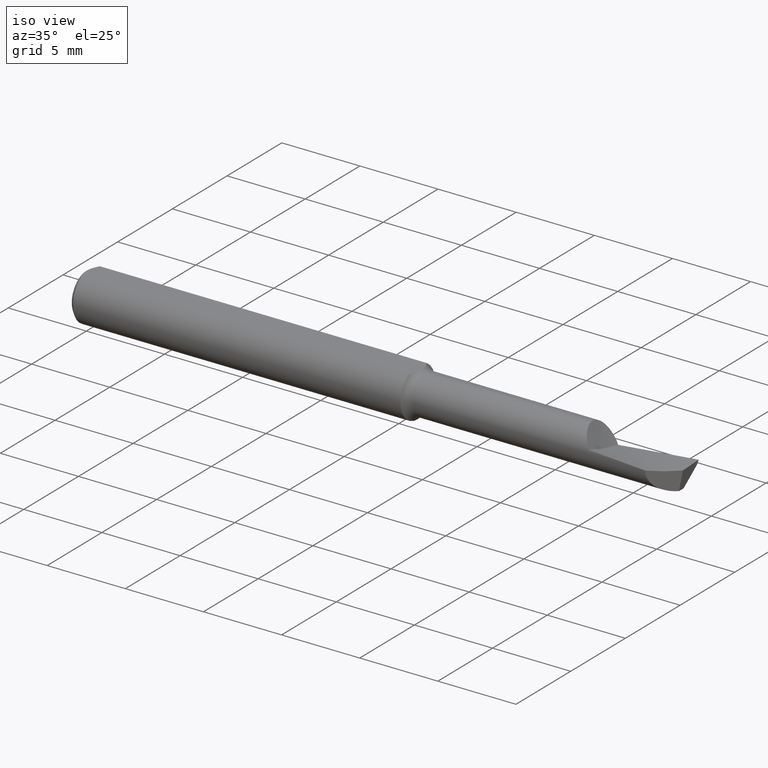
[diagram: clean part render]
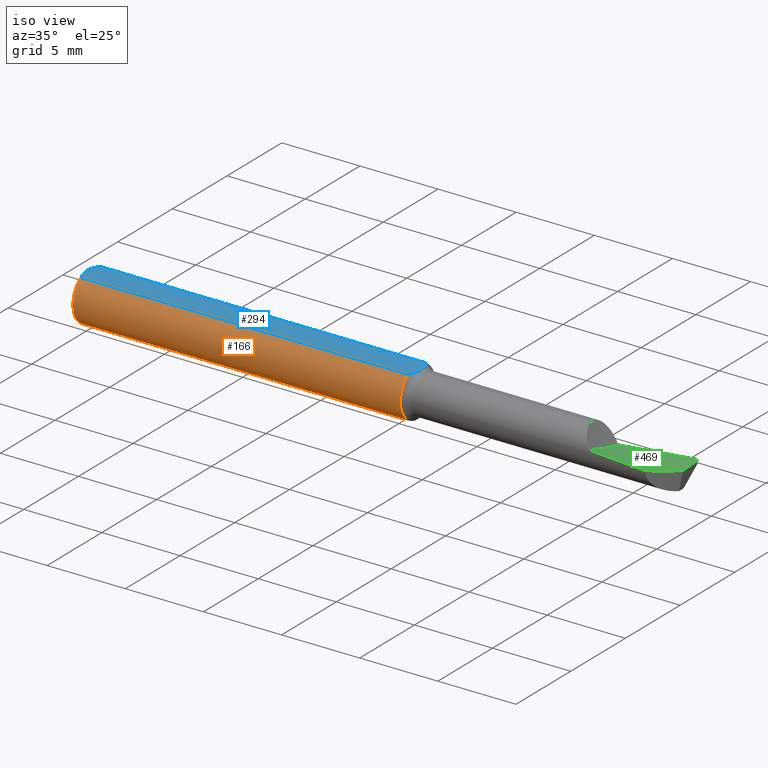
[diagram: same view with three faces highlighted in distinct colors, each labeled with its STEP entity id]
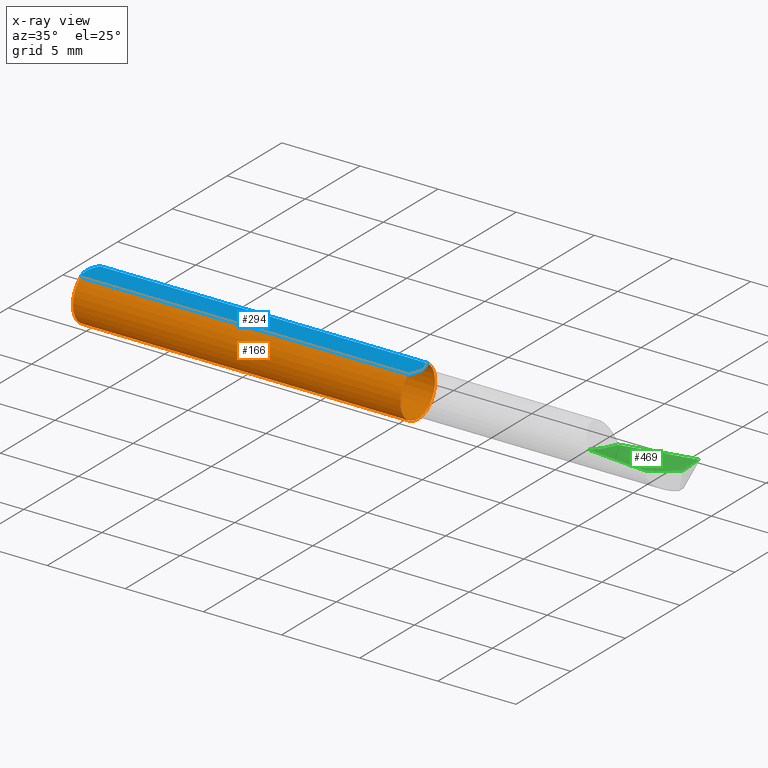
[diagram: x-ray of the same camera — body ghosted, the three highlighted faces saturated]
A machine part, iso view with three faces highlighted in distinct colors.
The next image is the same camera in x-ray (body ghosted, the three faces saturated) — at least one of them is partly hidden behind the body in this view.
Their STEP definitions:

[orange] entity #166 — the highlighted cylindrical surface (edge-blend (fillet) strip) has radius 1.5837 mm, axis along (-1, -0, -0).
#3 = DIRECTION ( 'NONE',  ( 0.000000000000000000, 0.000000000000000000, -1.000000000000000000 ) ) ;
#4 = CARTESIAN_POINT ( 'NONE',  ( 0.01000000000000000021, 0.03386738844375223462, 0.05234999999999997988 ) ) ;
#7 = DIRECTION ( 'NONE',  ( -1.000000000000000000, -0.000000000000000000, -0.000000000000000000 ) ) ;
#71 = EDGE_LOOP ( 'NONE', ( #762, #419, #255, #586, #273, #217 ) ) ;
#80 = CARTESIAN_POINT ( 'NONE',  ( 0.8350000000000000755, 7.635672792683742049E-18, -0.06234999999999995407 ) ) ;
#136 = DIRECTION ( 'NONE',  ( 0.000000000000000000, 0.000000000000000000, -1.000000000000000000 ) ) ;
#142 = VERTEX_POINT ( 'NONE', #413 ) ;
#144 = CIRCLE ( 'NONE', #418, 0.06235000000000000264 ) ;
#157 = AXIS2_PLACEMENT_3D ( 'NONE', #515, #387, #698 ) ;
#166 = ADVANCED_FACE ( 'NONE', ( #593 ), #283, .T. ) ;
#178 = CIRCLE ( 'NONE', #498, 0.06235000000000000264 ) ;
#187 = VERTEX_POINT ( 'NONE', #4 ) ;
#192 = CARTESIAN_POINT ( 'NONE',  ( 0.8350000000000000755, 0.03386738844375222768, 0.05234999999999997988 ) ) ;
#200 = CARTESIAN_POINT ( 'NONE',  ( 0.000000000000000000, 0.03386738844375223462, 0.05234999999999997988 ) ) ;
#217 = ORIENTED_EDGE ( 'NONE', *, *, #606, .F. ) ;
#237 = DIRECTION ( 'NONE',  ( 0.000000000000000000, 0.000000000000000000, 1.000000000000000000 ) ) ;
#255 = ORIENTED_EDGE ( 'NONE', *, *, #630, .F. ) ;
#256 = CARTESIAN_POINT ( 'NONE',  ( 0.000000000000000000, -0.03386738844375224156, 0.05234999999999997988 ) ) ;
#264 = VECTOR ( 'NONE', #556, 39.37007874015748143 ) ;
#273 = ORIENTED_EDGE ( 'NONE', *, *, #467, .F. ) ;
#283 = CYLINDRICAL_SURFACE ( 'NONE', #328, 0.06235000000000000264 ) ;
#296 = DIRECTION ( 'NONE',  ( -1.000000000000000000, -0.000000000000000000, -0.000000000000000000 ) ) ;
#300 = DIRECTION ( 'NONE',  ( 0.000000000000000000, 0.000000000000000000, 1.000000000000000000 ) ) ;
#305 = LINE ( 'NONE', #200, #264 ) ;
#328 = AXIS2_PLACEMENT_3D ( 'NONE', #667, #296, #237 ) ;
#330 = CIRCLE ( 'NONE', #732, 0.06235000000000000264 ) ;
#354 = VERTEX_POINT ( 'NONE', #754 ) ;
#372 = LINE ( 'NONE', #256, #763 ) ;
#378 = EDGE_CURVE ( 'NONE', #714, #187, #305, .T. ) ;
#387 = DIRECTION ( 'NONE',  ( -1.000000000000000000, -0.000000000000000000, -0.000000000000000000 ) ) ;
#413 = CARTESIAN_POINT ( 'NONE',  ( 0.01000000000000000021, 0.000000000000000000, -0.06235000000000000264 ) ) ;
#418 = AXIS2_PLACEMENT_3D ( 'NONE', #621, #7, #300 ) ;
#419 = ORIENTED_EDGE ( 'NONE', *, *, #661, .F. ) ;
#467 = EDGE_CURVE ( 'NONE', #142, #354, #611, .T. ) ;
#483 = CARTESIAN_POINT ( 'NONE',  ( 0.8350000000000000755, -0.03386738844375222074, 0.05234999999999998682 ) ) ;
#488 = CARTESIAN_POINT ( 'NONE',  ( 0.8350000000000000755, 0.000000000000000000, 0.000000000000000000 ) ) ;
#494 = DIRECTION ( 'NONE',  ( 1.000000000000000000, 0.000000000000000000, 0.000000000000000000 ) ) ;
#498 = AXIS2_PLACEMENT_3D ( 'NONE', #735, #545, #3 ) ;
#515 = CARTESIAN_POINT ( 'NONE',  ( 0.01000000000000000021, 0.000000000000000000, 0.000000000000000000 ) ) ;
#545 = DIRECTION ( 'NONE',  ( 1.000000000000000000, 0.000000000000000000, 0.000000000000000000 ) ) ;
#556 = DIRECTION ( 'NONE',  ( -1.000000000000000000, -0.000000000000000000, -0.000000000000000000 ) ) ;
#586 = ORIENTED_EDGE ( 'NONE', *, *, #751, .F. ) ;
#593 = FACE_OUTER_BOUND ( 'NONE', #71, .T. ) ;
#606 = EDGE_CURVE ( 'NONE', #187, #142, #144, .T. ) ;
#611 = CIRCLE ( 'NONE', #157, 0.06235000000000000264 ) ;
#621 = CARTESIAN_POINT ( 'NONE',  ( 0.01000000000000000021, 0.000000000000000000, 0.000000000000000000 ) ) ;
#630 = EDGE_CURVE ( 'NONE', #648, #673, #178, .T. ) ;
#648 = VERTEX_POINT ( 'NONE', #483 ) ;
#661 = EDGE_CURVE ( 'NONE', #673, #714, #330, .T. ) ;
#667 = CARTESIAN_POINT ( 'NONE',  ( 0.000000000000000000, 0.000000000000000000, 0.000000000000000000 ) ) ;
#673 = VERTEX_POINT ( 'NONE', #80 ) ;
#698 = DIRECTION ( 'NONE',  ( 0.000000000000000000, 0.000000000000000000, 1.000000000000000000 ) ) ;
#714 = VERTEX_POINT ( 'NONE', #192 ) ;
#732 = AXIS2_PLACEMENT_3D ( 'NONE', #488, #494, #136 ) ;
#735 = CARTESIAN_POINT ( 'NONE',  ( 0.8350000000000000755, 0.000000000000000000, 0.000000000000000000 ) ) ;
#747 = DIRECTION ( 'NONE',  ( 1.000000000000000000, 0.000000000000000000, 0.000000000000000000 ) ) ;
#751 = EDGE_CURVE ( 'NONE', #354, #648, #372, .T. ) ;
#754 = CARTESIAN_POINT ( 'NONE',  ( 0.01000000000000000021, -0.03386738844375224156, 0.05234999999999997988 ) ) ;
#762 = ORIENTED_EDGE ( 'NONE', *, *, #378, .F. ) ;
#763 = VECTOR ( 'NONE', #747, 39.37007874015748143 ) ;

[blue] entity #294 — the highlighted planar face has unit normal (0, -0, 1).
#4 = CARTESIAN_POINT ( 'NONE',  ( 0.01000000000000000021, 0.03386738844375223462, 0.05234999999999997988 ) ) ;
#12 = CARTESIAN_POINT ( 'NONE',  ( 0.8459813947744948548, 0.000000000000000000, 0.05234999999999997988 ) ) ;
#21 = VERTEX_POINT ( 'NONE', #33 ) ;
#33 = CARTESIAN_POINT ( 'NONE',  ( 0.000000000000000000, -5.426997665009263557E-18, 0.05234999999999997988 ) ) ;
#34 = CARTESIAN_POINT ( 'NONE',  ( 0.8436591603930051475, 0.01168548937459378163, 0.05234999999999997988 ) ) ;
#35 = B_SPLINE_CURVE_WITH_KNOTS ( 'NONE', 3,
 ( #319, #568, #274, #99, #521, #506 ),
 .UNSPECIFIED., .F., .F.,
 ( 4, 2, 4 ),
 ( 0.001820301466808375672, 0.002269751589838322255, 0.002719201712868268839 ),
 .UNSPECIFIED. ) ;
#38 = ORIENTED_EDGE ( 'NONE', *, *, #378, .T. ) ;
#57 = PLANE ( 'NONE',  #431 ) ;
#76 = CARTESIAN_POINT ( 'NONE',  ( 0.8368034958400585310, 0.02820766334555257354, 0.05234999999999997294 ) ) ;
#84 = ORIENTED_EDGE ( 'NONE', *, *, #783, .T. ) ;
#99 = CARTESIAN_POINT ( 'NONE',  ( 0.004679365186781223734, -0.02325953974079656220, 0.05234999999999998682 ) ) ;
#185 = CARTESIAN_POINT ( 'NONE',  ( 0.8368120315447669100, -0.02818087662329052390, 0.05234999999999998682 ) ) ;
#187 = VERTEX_POINT ( 'NONE', #4 ) ;
#192 = CARTESIAN_POINT ( 'NONE',  ( 0.8350000000000000755, 0.03386738844375222768, 0.05234999999999997988 ) ) ;
#200 = CARTESIAN_POINT ( 'NONE',  ( 0.000000000000000000, 0.03386738844375223462, 0.05234999999999997988 ) ) ;
#213 = CARTESIAN_POINT ( 'NONE',  ( 0.8453156692278123163, 0.005990347355133819086, 0.05234999999999997294 ) ) ;
#221 = CARTESIAN_POINT ( 'NONE',  ( 0.007185421074056372141, 0.02868573718286561436, 0.05234999999999997988 ) ) ;
#256 = CARTESIAN_POINT ( 'NONE',  ( 0.000000000000000000, -0.03386738844375224156, 0.05234999999999997988 ) ) ;
#264 = VECTOR ( 'NONE', #556, 39.37007874015748143 ) ;
#274 = CARTESIAN_POINT ( 'NONE',  ( 0.001055043921633255690, -0.01186408073210960291, 0.05234999999999997988 ) ) ;
#290 = EDGE_LOOP ( 'NONE', ( #692, #84, #756, #302, #536, #38 ) ) ;
#292 = DIRECTION ( 'NONE',  ( 0.000000000000000000, -1.036675771730518732E-16, 1.000000000000000000 ) ) ;
#294 = ADVANCED_FACE ( 'NONE', ( #663 ), #57, .T. ) ;
#302 = ORIENTED_EDGE ( 'NONE', *, *, #327, .F. ) ;
#305 = LINE ( 'NONE', #200, #264 ) ;
#319 = CARTESIAN_POINT ( 'NONE',  ( 0.000000000000000000, -5.426997665009263557E-18, 0.05234999999999997988 ) ) ;
#327 = EDGE_CURVE ( 'NONE', #664, #648, #509, .T. ) ;
#352 = CARTESIAN_POINT ( 'NONE',  ( -7.517250668112770884E-16, 0.005954997531773991229, 0.05234999999999998682 ) ) ;
#354 = VERTEX_POINT ( 'NONE', #754 ) ;
#372 = LINE ( 'NONE', #256, #763 ) ;
#378 = EDGE_CURVE ( 'NONE', #714, #187, #305, .T. ) ;
#381 = CARTESIAN_POINT ( 'NONE',  ( 0.8459813947744764251, -0.006046836617477542065, 0.05234999999999997988 ) ) ;
#385 = CARTESIAN_POINT ( 'NONE',  ( 0.8459813947744948548, 0.000000000000000000, 0.05234999999999997988 ) ) ;
#416 = CARTESIAN_POINT ( 'NONE',  ( 0.001063697276021675735, 0.01189177144351694949, 0.05234999999999998682 ) ) ;
#431 = AXIS2_PLACEMENT_3D ( 'NONE', #601, #292, #481 ) ;
#433 = CARTESIAN_POINT ( 'NONE',  ( 0.8350000000000000755, 0.03386738844375222768, 0.05234999999999997988 ) ) ;
#460 = B_SPLINE_CURVE_WITH_KNOTS ( 'NONE', 3,
 ( #592, #221, #660, #416, #352, #466 ),
 .UNSPECIFIED., .F., .F.,
 ( 4, 2, 4 ),
 ( 0.0009229516234080532410, 0.001371626545108214565, 0.001820301466808375672 ),
 .UNSPECIFIED. ) ;
#466 = CARTESIAN_POINT ( 'NONE',  ( 0.000000000000000000, -5.426997665009263557E-18, 0.05234999999999997988 ) ) ;
#477 = B_SPLINE_CURVE_WITH_KNOTS ( 'NONE', 3,
 ( #433, #76, #680, #559, #34, #644, #213, #578, #696, #711, #631, #385 ),
 .UNSPECIFIED., .F., .F.,
 ( 4, 2, 2, 2, 2, 4 ),
 ( 0.009001746539093115340, 0.009426138464416946444, 0.009638334427078861996, 0.009744432408409820640, 0.009797481399075299094, 0.009850530389740777548 ),
 .UNSPECIFIED. ) ;
#481 = DIRECTION ( 'NONE',  ( 0.000000000000000000, -1.000000000000000000, -1.036675771730518732E-16 ) ) ;
#483 = CARTESIAN_POINT ( 'NONE',  ( 0.8350000000000000755, -0.03386738844375222074, 0.05234999999999998682 ) ) ;
#496 = CARTESIAN_POINT ( 'NONE',  ( 0.8437167490825662197, -0.01161589549109410570, 0.05234999999999997988 ) ) ;
#501 = CARTESIAN_POINT ( 'NONE',  ( 0.8391788934236982245, -0.02268120224290464532, 0.05234999999999998682 ) ) ;
#506 = CARTESIAN_POINT ( 'NONE',  ( 0.01000000000000000021, -0.03386738844375224156, 0.05234999999999997988 ) ) ;
#509 = B_SPLINE_CURVE_WITH_KNOTS ( 'NONE', 3,
 ( #12, #381, #496, #501, #185, #619 ),
 .UNSPECIFIED., .F., .F.,
 ( 4, 2, 4 ),
 ( 9.965731331657841268E-17, 0.0004503630282564606590, 0.0009007260565128216798 ),
 .UNSPECIFIED. ) ;
#521 = CARTESIAN_POINT ( 'NONE',  ( 0.007163450771350561574, -0.02864528976618616399, 0.05234999999999998682 ) ) ;
#530 = EDGE_CURVE ( 'NONE', #187, #21, #460, .T. ) ;
#536 = ORIENTED_EDGE ( 'NONE', *, *, #760, .F. ) ;
#556 = DIRECTION ( 'NONE',  ( -1.000000000000000000, -0.000000000000000000, -0.000000000000000000 ) ) ;
#559 = CARTESIAN_POINT ( 'NONE',  ( 0.8425548128889882582, 0.01445079804372324805, 0.05234999999999998682 ) ) ;
#568 = CARTESIAN_POINT ( 'NONE',  ( -7.326168038673117461E-16, -0.005965286321680246008, 0.05234999999999997988 ) ) ;
#578 = CARTESIAN_POINT ( 'NONE',  ( 0.8457033153463193731, 0.003785084113135211027, 0.05234999999999997988 ) ) ;
#592 = CARTESIAN_POINT ( 'NONE',  ( 0.01000000000000000021, 0.03386738844375223462, 0.05234999999999997988 ) ) ;
#601 = CARTESIAN_POINT ( 'NONE',  ( 1.500787401574803281, 0.08234999999999999265, 0.05234999999999998682 ) ) ;
#614 = CARTESIAN_POINT ( 'NONE',  ( 0.8459813947744948548, 0.000000000000000000, 0.05234999999999997988 ) ) ;
#619 = CARTESIAN_POINT ( 'NONE',  ( 0.8350000000000000755, -0.03386738844375222074, 0.05234999999999998682 ) ) ;
#631 = CARTESIAN_POINT ( 'NONE',  ( 0.8459813947744762030, 0.0007122666807667983211, 0.05234999999999997988 ) ) ;
#644 = CARTESIAN_POINT ( 'NONE',  ( 0.8449495558818840291, 0.007428438660920773720, 0.05234999999999998682 ) ) ;
#648 = VERTEX_POINT ( 'NONE', #483 ) ;
#660 = CARTESIAN_POINT ( 'NONE',  ( 0.004671770759546989976, 0.02323517832780104542, 0.05234999999999997988 ) ) ;
#663 = FACE_OUTER_BOUND ( 'NONE', #290, .T. ) ;
#664 = VERTEX_POINT ( 'NONE', #614 ) ;
#680 = CARTESIAN_POINT ( 'NONE',  ( 0.8391606167690842666, 0.02272254421447777312, 0.05234999999999996600 ) ) ;
#692 = ORIENTED_EDGE ( 'NONE', *, *, #530, .T. ) ;
#696 = CARTESIAN_POINT ( 'NONE',  ( 0.8458054385995351643, 0.003041924228976440776, 0.05234999999999997988 ) ) ;
#711 = CARTESIAN_POINT ( 'NONE',  ( 0.8459445205630456988, 0.001536188589401673047, 0.05234999999999998682 ) ) ;
#714 = VERTEX_POINT ( 'NONE', #192 ) ;
#747 = DIRECTION ( 'NONE',  ( 1.000000000000000000, 0.000000000000000000, 0.000000000000000000 ) ) ;
#751 = EDGE_CURVE ( 'NONE', #354, #648, #372, .T. ) ;
#754 = CARTESIAN_POINT ( 'NONE',  ( 0.01000000000000000021, -0.03386738844375224156, 0.05234999999999997988 ) ) ;
#756 = ORIENTED_EDGE ( 'NONE', *, *, #751, .T. ) ;
#760 = EDGE_CURVE ( 'NONE', #714, #664, #477, .T. ) ;
#763 = VECTOR ( 'NONE', #747, 39.37007874015748143 ) ;
#783 = EDGE_CURVE ( 'NONE', #21, #354, #35, .T. ) ;

[green] entity #469 — the highlighted face is a freeform B-spline surface patch.
#19 = CARTESIAN_POINT ( 'NONE',  ( 1.371696910058134877, -0.04974385689216415107, 0.006738323171264287530 ) ) ;
#23 = CARTESIAN_POINT ( 'NONE',  ( 1.359259259259259389, -0.1107540548774973571, 0.02886139084095134047 ) ) ;
#26 = EDGE_CURVE ( 'NONE', #647, #570, #116, .T. ) ;
#27 = CARTESIAN_POINT ( 'NONE',  ( 1.359259259259259389, -0.03952263301441668458, -0.001352896635218390391 ) ) ;
#32 = CARTESIAN_POINT ( 'NONE',  ( 1.500000000000000222, 0.1123499999999999360, 0.009051054558355491400 ) ) ;
#41 = CARTESIAN_POINT ( 'NONE',  ( 1.077777777777778834, 0.1033942727226855457, -0.04908222612340253782 ) ) ;
#85 =( BOUNDED_SURFACE ( )  B_SPLINE_SURFACE ( 3, 2, ( 
 ( #91, #23, #389, #275, #770 ),
 ( #632, #27, #165, #214, #403 ),
 ( #260, #263, #464, #340, #512 ),
 ( #32, #766, #703, #41, #646 ) ),
 .UNSPECIFIED., .F., .F., .F. ) 
 B_SPLINE_SURFACE_WITH_KNOTS ( ( 4, 4 ),
 ( 3, 2, 3 ),
 ( 0.000000000000000000, 1.000000000000000000 ),
 ( 0.000000000000000000, 0.5000000000000000000, 1.000000000000000000 ),
 .UNSPECIFIED. ) 
 GEOMETRIC_REPRESENTATION_ITEM ( )  RATIONAL_B_SPLINE_SURFACE ( (
 ( 1.000000000000000000, 0.9848077530122080203, 1.000000000000000000, 0.9848077530122080203, 1.000000000000000000),
 ( 0.9829519941216796619, 0.9680187446498405013, 0.9829519941216796619, 0.9680187446498405013, 0.9829519941216796619),
 ( 0.9829519941216796619, 0.9680187446498405013, 0.9829519941216796619, 0.9680187446498405013, 0.9829519941216796619),
 ( 1.000000000000000000, 0.9848077530122080203, 1.000000000000000000, 0.9848077530122080203, 1.000000000000000000) ) ) 
 REPRESENTATION_ITEM ( '' )  SURFACE ( )  );
#91 = CARTESIAN_POINT ( 'NONE',  ( 1.500000000000000222, -0.1123499999999997279, 0.009051054558355354357 ) ) ;
#115 = CARTESIAN_POINT ( 'NONE',  ( 1.500000000000000222, 0.06099999999999999173, 0.000000000000000000 ) ) ;
#116 = B_SPLINE_CURVE_WITH_KNOTS ( 'NONE', 3,
 ( #390, #455, #326, #580 ),
 .UNSPECIFIED., .F., .F.,
 ( 4, 4 ),
 ( 0.000000000000000000, 1.000000000000000000 ),
 .UNSPECIFIED. ) ;
#117 = CARTESIAN_POINT ( 'NONE',  ( 1.299660611757699202, -0.04875608591997589170, 0.01108350512085068407 ) ) ;
#123 = CARTESIAN_POINT ( 'NONE',  ( 1.443537192659749113, -0.04994767138989437971, 0.002286946157460104621 ) ) ;
#131 = CARTESIAN_POINT ( 'NONE',  ( 1.499060726972478941, 0.005575862922834545765, -0.003710373355272122801 ) ) ;
#138 = VERTEX_POINT ( 'NONE', #123 ) ;
#155 = CARTESIAN_POINT ( 'NONE',  ( 1.310000000000000053, 0.04832009609053197763, -0.01285178251456811117 ) ) ;
#165 = CARTESIAN_POINT ( 'NONE',  ( 1.218518518518519222, -0.03856223875658788824, 0.005446666494089702493 ) ) ;
#176 = CARTESIAN_POINT ( 'NONE',  ( 1.310000000000000053, 0.04832009609053197763, -0.01285178251456811117 ) ) ;
#180 = EDGE_CURVE ( 'NONE', #602, #359, #652, .T. ) ;
#214 = CARTESIAN_POINT ( 'NONE',  ( 1.077777777777779056, -0.03760184449875909884, 0.01224622962339779429 ) ) ;
#243 = ORIENTED_EDGE ( 'NONE', *, *, #634, .F. ) ;
#244 = EDGE_CURVE ( 'NONE', #321, #359, #769, .T. ) ;
#260 = CARTESIAN_POINT ( 'NONE',  ( 1.500000000000000000, 0.03809952085550591394, -0.008070870114108811763 ) ) ;
#263 = CARTESIAN_POINT ( 'NONE',  ( 1.359259259259259389, 0.03667640869659492125, -0.01478884359299935912 ) ) ;
#275 = CARTESIAN_POINT ( 'NONE',  ( 1.077777777777778834, -0.09420359105850152626, 0.06500095372196058874 ) ) ;
#282 = CARTESIAN_POINT ( 'NONE',  ( 1.443537192659749113, -0.04994767138989437971, 0.002286946157460104621 ) ) ;
#293 = ORIENTED_EDGE ( 'NONE', *, *, #26, .T. ) ;
#295 = CARTESIAN_POINT ( 'NONE',  ( 1.306287550036676626, 0.04826060256744394567, -0.01307341729721895295 ) ) ;
#308 = CARTESIAN_POINT ( 'NONE',  ( 1.443537192659749113, -0.04994767138989437971, 0.002286946157460104621 ) ) ;
#313 = CARTESIAN_POINT ( 'NONE',  ( 1.499244874835158781, 0.02406214188587658606, -0.003524521965467473841 ) ) ;
#320 = CARTESIAN_POINT ( 'NONE',  ( 1.500000000000000222, 0.06099999999999999173, 0.000000000000000000 ) ) ;
#321 = VERTEX_POINT ( 'NONE', #320 ) ;
#326 = CARTESIAN_POINT ( 'NONE',  ( 1.301901999064766668, -0.01746344439931329581, -0.0004220525407220269585 ) ) ;
#336 = CARTESIAN_POINT ( 'NONE',  ( 1.499060726972478941, 0.005575862922834545765, -0.003710373355272122801 ) ) ;
#340 = CARTESIAN_POINT ( 'NONE',  ( 1.077777777777779056, 0.02940646820381983412, -0.02644103775337865517 ) ) ;
#350 =( BOUNDED_CURVE ( )  B_SPLINE_CURVE ( 2, ( #308, #19, #607 ),
 .UNSPECIFIED., .F., .T. ) 
 B_SPLINE_CURVE_WITH_KNOTS ( ( 3, 3 ),
 ( 0.1010291644753896767, 0.3552042555019970793 ),
 .UNSPECIFIED. ) 
 CURVE ( )  GEOMETRIC_REPRESENTATION_ITEM ( )  RATIONAL_B_SPLINE_CURVE ( ( 0.9848445176714386573, 0.9802899546835003308, 0.9835064192122493498 ) ) 
 REPRESENTATION_ITEM ( '' )  );
#356 = CARTESIAN_POINT ( 'NONE',  ( 1.499060726972478941, 0.005575862922834545765, -0.003710373355272122801 ) ) ;
#357 = CARTESIAN_POINT ( 'NONE',  ( 1.373365688489596392, 0.05312941210585368779, -0.009567210660196081434 ) ) ;
#359 = VERTEX_POINT ( 'NONE', #370 ) ;
#370 = CARTESIAN_POINT ( 'NONE',  ( 1.309999999999999387, 0.04851636515732773991, -0.01287844342414591614 ) ) ;
#389 = CARTESIAN_POINT ( 'NONE',  ( 1.218518518518519222, -0.1024788229679994139, 0.04693117228145596981 ) ) ;
#390 = CARTESIAN_POINT ( 'NONE',  ( 1.306287550036676626, 0.04826060256744394567, -0.01307341729721895295 ) ) ;
#403 = CARTESIAN_POINT ( 'NONE',  ( 0.9370370370370384450, -0.03437378154559433269, 0.01830725473886479424 ) ) ;
#430 = ORIENTED_EDGE ( 'NONE', *, *, #555, .F. ) ;
#432 = EDGE_CURVE ( 'NONE', #647, #602, #623, .T. ) ;
#443 = VERTEX_POINT ( 'NONE', #336 ) ;
#452 = CARTESIAN_POINT ( 'NONE',  ( 1.308143505835337672, 0.04829060363433861774, -0.01296266816919170589 ) ) ;
#454 = CARTESIAN_POINT ( 'NONE',  ( 1.306287550036676626, 0.04826060256744394567, -0.01307341729721895295 ) ) ;
#455 = CARTESIAN_POINT ( 'NONE',  ( 1.304094262412051064, 0.01522701515643958871, -0.008560864967593652397 ) ) ;
#456 = ORIENTED_EDGE ( 'NONE', *, *, #674, .F. ) ;
#464 = CARTESIAN_POINT ( 'NONE',  ( 1.218518518518519222, 0.03304143845020738463, -0.02061494067318901668 ) ) ;
#469 = ADVANCED_FACE ( 'NONE', ( #773 ), #85, .T. ) ;
#471 = CARTESIAN_POINT ( 'NONE',  ( 1.310000000000000275, 0.04845094059211994125, -0.01286956944220401210 ) ) ;
#476 = CARTESIAN_POINT ( 'NONE',  ( 1.461920780206855230, -0.03156408384278854007, -0.002026216369635106766 ) ) ;
#487 = ORIENTED_EDGE ( 'NONE', *, *, #180, .F. ) ;
#512 = CARTESIAN_POINT ( 'NONE',  ( 0.9370370370370384450, 0.02399807092811738832, -0.03067254514296119047 ) ) ;
#531 = CARTESIAN_POINT ( 'NONE',  ( 1.310000000000000053, 0.04832009609053197763, -0.01285178251456811117 ) ) ;
#532 = CARTESIAN_POINT ( 'NONE',  ( 1.309999999999999387, 0.04851636515732773991, -0.01287844342414591614 ) ) ;
#542 = CARTESIAN_POINT ( 'NONE',  ( 1.309999999999999387, 0.04851636515732773991, -0.01287844342414591614 ) ) ;
#555 = EDGE_CURVE ( 'NONE', #443, #138, #694, .T. ) ;
#558 = ORIENTED_EDGE ( 'NONE', *, *, #432, .F. ) ;
#570 = VERTEX_POINT ( 'NONE', #117 ) ;
#580 = CARTESIAN_POINT ( 'NONE',  ( 1.299660611757699202, -0.04875608591997589170, 0.01108350512085068407 ) ) ;
#599 = EDGE_LOOP ( 'NONE', ( #243, #629, #487, #558, #293, #456, #430 ) ) ;
#600 = CARTESIAN_POINT ( 'NONE',  ( 1.480428606310077111, -0.01305625773956573150, -0.004025670524281536010 ) ) ;
#602 = VERTEX_POINT ( 'NONE', #531 ) ;
#603 = CARTESIAN_POINT ( 'NONE',  ( 1.499556047791017477, 0.04253702630031992032, -0.002303363771206433461 ) ) ;
#607 = CARTESIAN_POINT ( 'NONE',  ( 1.299660611757699202, -0.04875608591997589170, 0.01108350512085068407 ) ) ;
#623 =( BOUNDED_CURVE ( )  B_SPLINE_CURVE ( 2, ( #454, #452, #155 ),
 .UNSPECIFIED., .F., .T. ) 
 B_SPLINE_CURVE_WITH_KNOTS ( ( 3, 3 ),
 ( 0.6565203364799460095, 0.6630843236817458575 ),
 .UNSPECIFIED. ) 
 CURVE ( )  GEOMETRIC_REPRESENTATION_ITEM ( )  RATIONAL_B_SPLINE_CURVE ( ( 0.9832262161177709459, 0.9831524091544407984, 0.9830837847938763696 ) ) 
 REPRESENTATION_ITEM ( '' )  );
#629 = ORIENTED_EDGE ( 'NONE', *, *, #244, .T. ) ;
#632 = CARTESIAN_POINT ( 'NONE',  ( 1.500000000000000000, -0.03809952085550567802, -0.008070870114108900234 ) ) ;
#634 = EDGE_CURVE ( 'NONE', #321, #443, #767, .T. ) ;
#646 = CARTESIAN_POINT ( 'NONE',  ( 0.9370370370370384450, 0.09188299890912490775, -0.06528367789948771871 ) ) ;
#647 = VERTEX_POINT ( 'NONE', #295 ) ;
#652 =( BOUNDED_CURVE ( )  B_SPLINE_CURVE ( 3, ( #176, #719, #471, #532 ),
 .UNSPECIFIED., .F., .T. ) 
 B_SPLINE_CURVE_WITH_KNOTS ( ( 4, 4 ),
 ( 0.002888870400669168829, 0.002893898242438117108 ),
 .UNSPECIFIED. ) 
 CURVE ( )  GEOMETRIC_REPRESENTATION_ITEM ( )  RATIONAL_B_SPLINE_CURVE ( ( 0.9830837847938764806, 0.9830902898858546735, 0.9830968078666010301, 0.9831033387361156617 ) ) 
 REPRESENTATION_ITEM ( '' )  );
#674 = EDGE_CURVE ( 'NONE', #138, #570, #350, .T. ) ;
#689 = CARTESIAN_POINT ( 'NONE',  ( 1.500000000000000222, 0.06099999999999999173, 0.000000000000000000 ) ) ;
#694 = B_SPLINE_CURVE_WITH_KNOTS ( 'NONE', 3,
 ( #356, #600, #476, #282 ),
 .UNSPECIFIED., .F., .F.,
 ( 4, 4 ),
 ( 3.360841147580338214E-05, 0.002033879358075167763 ),
 .UNSPECIFIED. ) ;
#703 = CARTESIAN_POINT ( 'NONE',  ( 1.218518518518519222, 0.1086701089225939471, -0.02992075392382154489 ) ) ;
#719 = CARTESIAN_POINT ( 'NONE',  ( 1.310000000000000053, 0.04838551756898672868, -0.01286068247231435084 ) ) ;
#729 = CARTESIAN_POINT ( 'NONE',  ( 1.436701421318468341, 0.05740564620913561622, -0.005279330986701147484 ) ) ;
#766 = CARTESIAN_POINT ( 'NONE',  ( 1.359259259259259389, 0.1139459451225023623, -0.01075928172424053808 ) ) ;
#767 = B_SPLINE_CURVE_WITH_KNOTS ( 'NONE', 3,
 ( #689, #603, #313, #131 ),
 .UNSPECIFIED., .F., .F.,
 ( 4, 4 ),
 ( 9.865470222797433505E-23, 0.001408795476511415408 ),
 .UNSPECIFIED. ) ;
#769 = B_SPLINE_CURVE_WITH_KNOTS ( 'NONE', 3,
 ( #115, #729, #357, #542 ),
 .UNSPECIFIED., .F., .F.,
 ( 4, 4 ),
 ( 4.933108954491067937E-21, 0.004847601814201544720 ),
 .UNSPECIFIED. ) ;
#770 = CARTESIAN_POINT ( 'NONE',  ( 0.9370370370370384450, -0.08024718745970926825, 0.07915069799707732945 ) ) ;
#773 = FACE_OUTER_BOUND ( 'NONE', #599, .T. ) ;